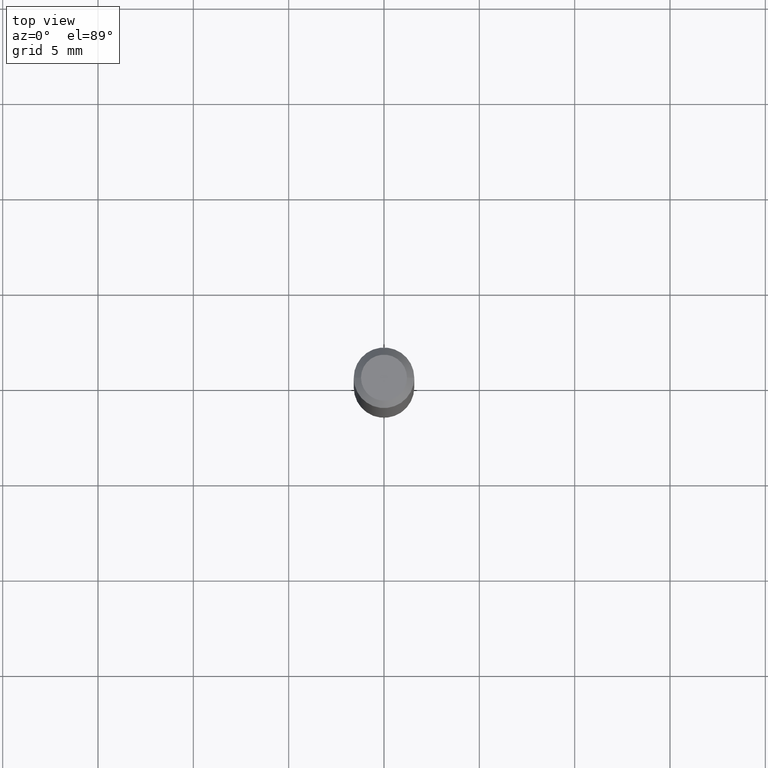
[diagram: clean part render]
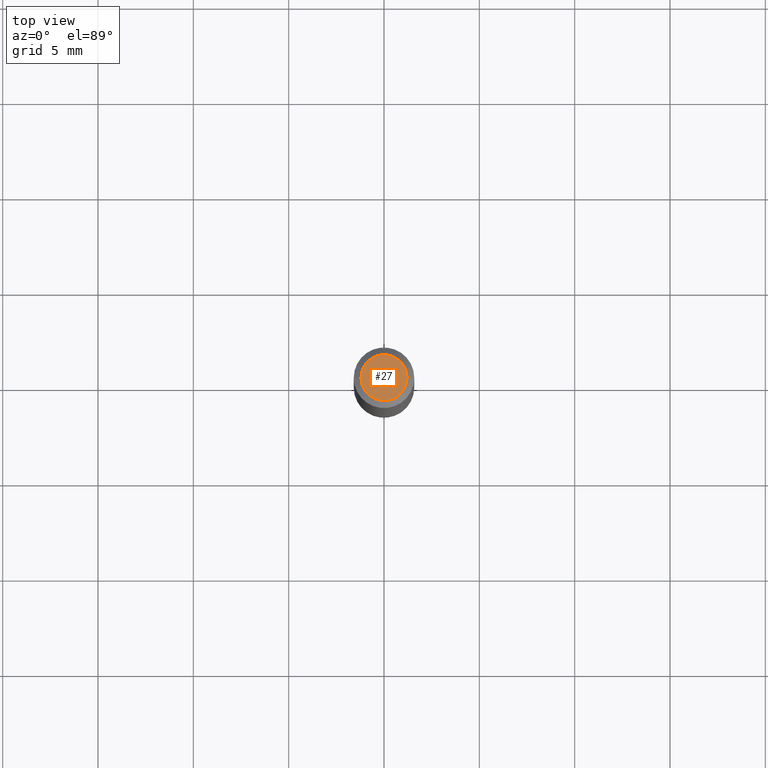
[diagram: same view with one face highlighted and labeled with its STEP entity id]
A machine part, top view. The second image highlights one B-rep face of the part: STEP entity #27.
In plain terms, the highlighted planar face has unit normal (0, -0, -1).
Its self-contained STEP definition (entity closure, byte-faithful):
#5 = CIRCLE ( 'NONE', #298, 0.04750000000000000749 ) ;
#27 = ADVANCED_FACE ( 'NONE', ( #100 ), #107, .F. ) ;
#52 = CARTESIAN_POINT ( 'NONE',  ( -6.680649051745406845E-45, 9.538196290434862081E-31, 2.731847993664263218E-16 ) ) ;
#57 = EDGE_LOOP ( 'NONE', ( #473, #507 ) ) ;
#66 = DIRECTION ( 'NONE',  ( 2.438088387897960049E-29, -3.491481338843145188E-15, -1.000000000000000000 ) ) ;
#69 = EDGE_CURVE ( 'NONE', #399, #464, #102, .T. ) ;
#88 = AXIS2_PLACEMENT_3D ( 'NONE', #427, #66, #275 ) ;
#89 = CARTESIAN_POINT ( 'NONE',  ( -0.04750000000000000749, 3.578768372314221353E-16, 2.731847993664239060E-16 ) ) ;
#100 = FACE_OUTER_BOUND ( 'NONE', #57, .T. ) ;
#102 = CIRCLE ( 'NONE', #454, 0.04750000000000000749 ) ;
#107 = PLANE ( 'NONE',  #88 ) ;
#121 = CARTESIAN_POINT ( 'NONE',  ( 0.04750000000000000749, -4.035134999187568762E-16, 2.731847993664288856E-16 ) ) ;
#207 = DIRECTION ( 'NONE',  ( 1.000000000000000000, -6.982962677686266711E-15, 4.852736867747365086E-29 ) ) ;
#275 = DIRECTION ( 'NONE',  ( -1.000000000000000000, 6.982962677686265922E-15, -4.876176775795935793E-29 ) ) ;
#298 = AXIS2_PLACEMENT_3D ( 'NONE', #52, #372, #207 ) ;
#309 = DIRECTION ( 'NONE',  ( 1.000000000000000000, -6.982962677686266711E-15, 4.852736867747365086E-29 ) ) ;
#347 = EDGE_CURVE ( 'NONE', #464, #399, #5, .T. ) ;
#372 = DIRECTION ( 'NONE',  ( -2.445468806185136597E-29, 3.491481338843145583E-15, 1.000000000000000000 ) ) ;
#384 = CARTESIAN_POINT ( 'NONE',  ( -6.680649051745406845E-45, 9.538196290434862081E-31, 2.731847993664263218E-16 ) ) ;
#399 = VERTEX_POINT ( 'NONE', #89 ) ;
#427 = CARTESIAN_POINT ( 'NONE',  ( 3.316907271900976589E-16, 0.04750000000000000749, -2.925296391183627249E-17 ) ) ;
#454 = AXIS2_PLACEMENT_3D ( 'NONE', #384, #469, #309 ) ;
#464 = VERTEX_POINT ( 'NONE', #121 ) ;
#469 = DIRECTION ( 'NONE',  ( -2.445468806185136597E-29, 3.491481338843145583E-15, 1.000000000000000000 ) ) ;
#473 = ORIENTED_EDGE ( 'NONE', *, *, #69, .T. ) ;
#507 = ORIENTED_EDGE ( 'NONE', *, *, #347, .T. ) ;